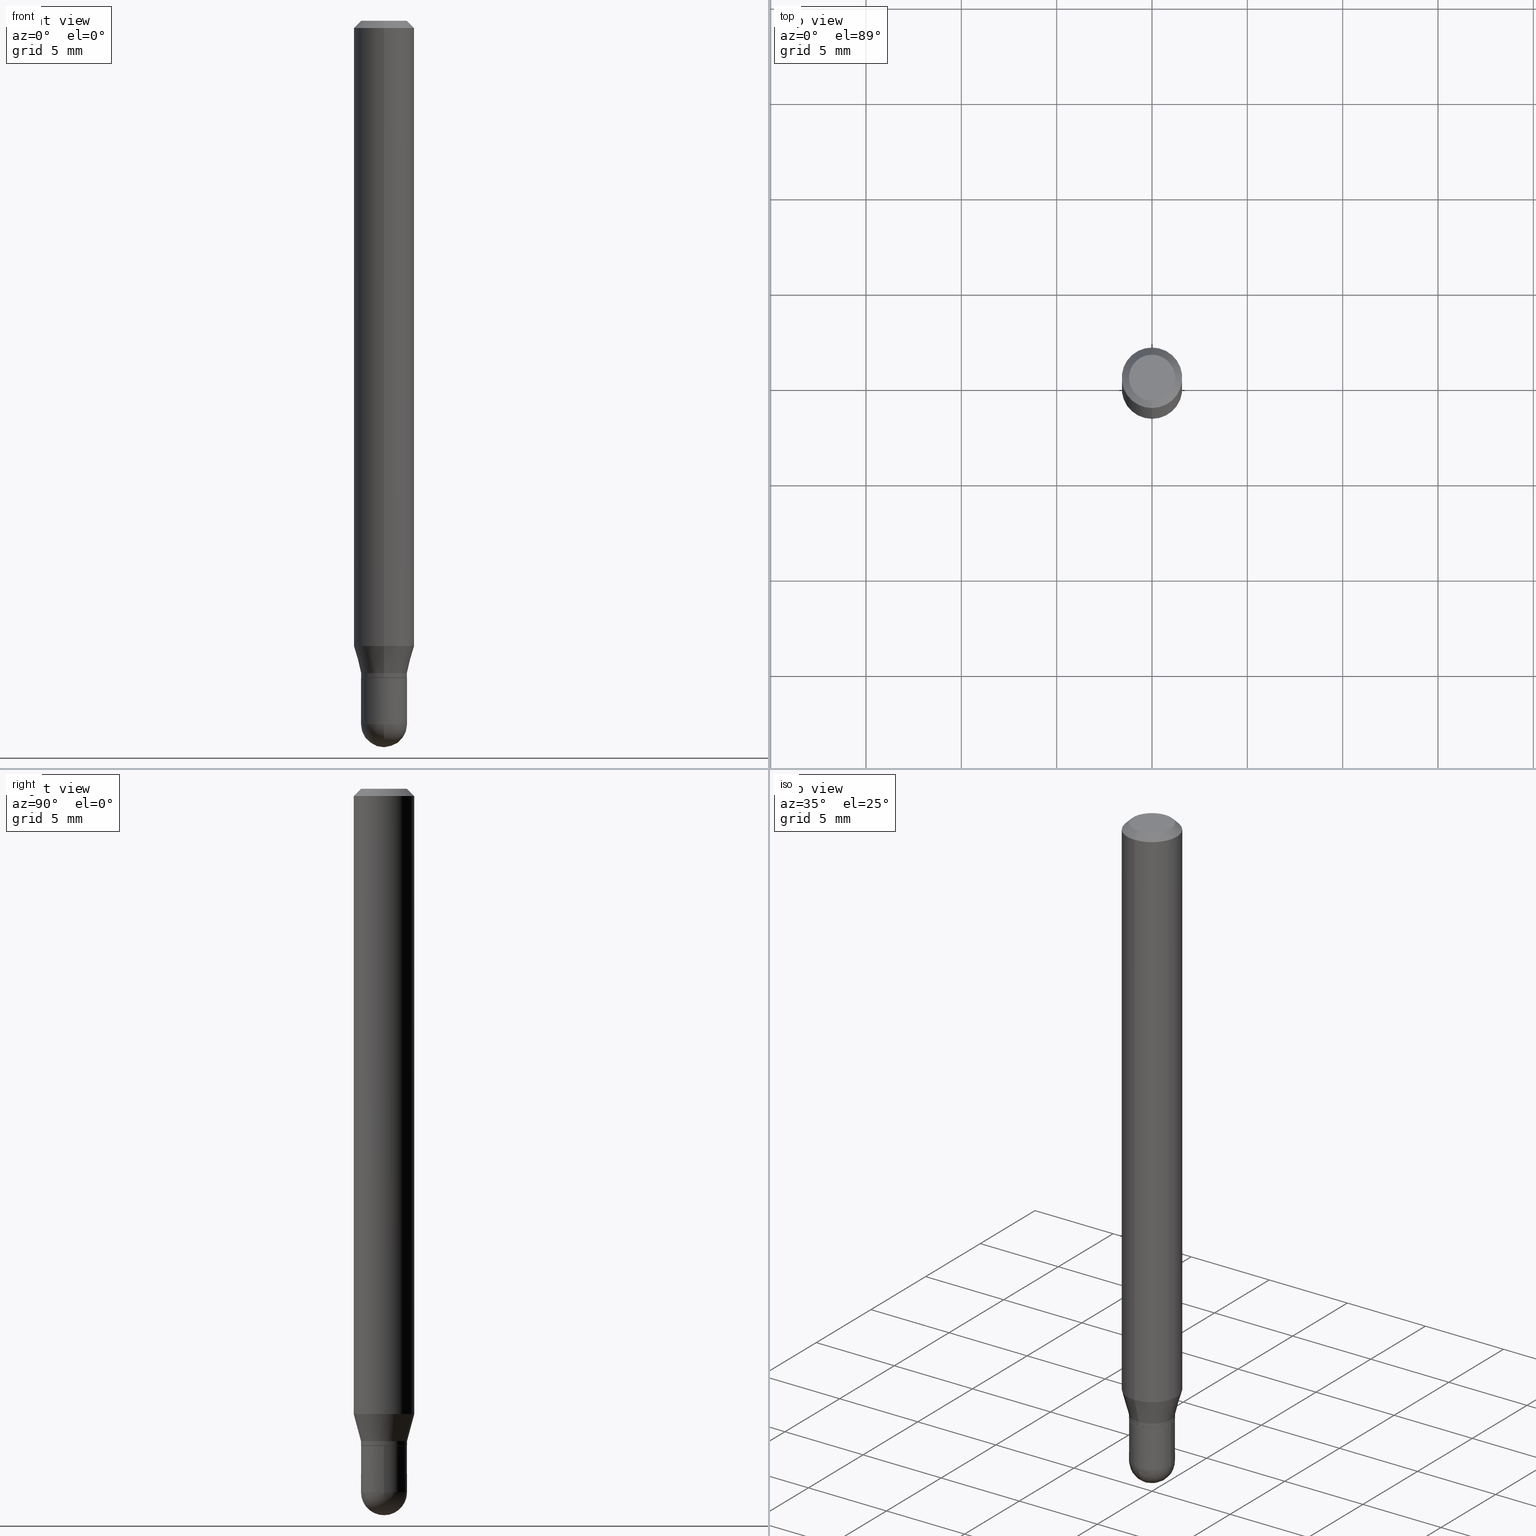
[diagram: canonical four-view strip — front | top / right | iso, engineering-drawing reading convention]
A machine part, canonical four-view strip (front | top / right | iso — engineering-drawing reading convention). The complete STEP part file that produces these views, byte-faithful:
ISO-10303-21;
HEADER;
FILE_DESCRIPTION (( 'STEP AP203' ),
    '1' );
FILE_NAME ('00804.STEP',
    '2024-03-07T18:26:48',
    ( '' ),
    ( '' ),
    'SwSTEP 2.0',
    'SolidWorks 2023',
    '' );
FILE_SCHEMA (( 'CONFIG_CONTROL_DESIGN' ));
ENDSEC;

DATA;
#1 = CARTESIAN_POINT ( 'NONE',  ( 3.547981401110308940E-29, -5.077193716965619798E-15, -1.452500000000000124 ) ) ;
#2 = DIRECTION ( 'NONE',  ( -2.445468806185136877E-29, 3.491481338843145188E-15, 1.000000000000000000 ) ) ;
#3 = DATE_AND_TIME ( #399, #29 ) ;
#4 = EDGE_LOOP ( 'NONE', ( #440, #170, #231, #371 ) ) ;
#5 = CIRCLE ( 'NONE', #391, 0.06250000000000000000 ) ;
#6 = AXIS2_PLACEMENT_3D ( 'NONE', #306, #341, #104 ) ;
#7 = DIRECTION ( 'NONE',  ( -2.445468806185136597E-29, 3.491481338843145583E-15, 1.000000000000000000 ) ) ;
#8 = EDGE_CURVE ( 'NONE', #116, #125, #183, .T. ) ;
#9 = APPROVAL_DATE_TIME ( #3, #226 ) ;
#10 = DIRECTION ( 'NONE',  ( 1.000000000000000000, -6.982962677686265922E-15, 4.883557194083112340E-29 ) ) ;
#11 = ORIENTED_EDGE ( 'NONE', *, *, #23, .F. ) ;
#12 = CARTESIAN_POINT ( 'NONE',  ( 3.357314426466801272E-16, 0.04699999999999526085, -1.357000000000000206 ) ) ;
#13 = DIRECTION ( 'NONE',  ( -6.982962677686265922E-15, -1.000000000000000000, 5.751258934030037627E-15 ) ) ;
#14 = ORIENTED_EDGE ( 'NONE', *, *, #232, .F. ) ;
#15 = EDGE_CURVE ( 'NONE', #449, #390, #491, .T. ) ;
#16 = AXIS2_PLACEMENT_3D ( 'NONE', #174, #213, #426 ) ;
#17 = ORIENTED_EDGE ( 'NONE', *, *, #337, .T. ) ;
#18 = FACE_OUTER_BOUND ( 'NONE', #433, .T. ) ;
#19 = ORIENTED_EDGE ( 'NONE', *, *, #8, .T. ) ;
#20 = CARTESIAN_POINT ( 'NONE',  ( 3.318513853280386005E-29, -4.737922013621053699E-15, -1.356999999999999984 ) ) ;
#21 = VECTOR ( 'NONE', #48, 39.37007874015748143 ) ;
#22 = SECURITY_CLASSIFICATION ( '', '', #460 ) ;
#23 = EDGE_CURVE ( 'NONE', #240, #490, #409, .T. ) ;
#24 = DATE_TIME_ROLE ( 'creation_date' ) ;
#25 = CARTESIAN_POINT ( 'NONE',  ( 3.552043440983912297E-29, -5.071376644669670605E-15, -1.452500000000000346 ) ) ;
#26 = DATE_AND_TIME ( #267, #236 ) ;
#27 = CARTESIAN_POINT ( 'NONE',  ( 3.318513853280386005E-29, -4.737922013621053699E-15, -1.356999999999999984 ) ) ;
#28 = AXIS2_PLACEMENT_3D ( 'NONE', #71, #221, #254 ) ;
#29 = LOCAL_TIME ( 13, 26, 48.00000000000000000, #436 ) ;
#30 = PERSON_AND_ORGANIZATION_ROLE ( 'classification_officer' ) ;
#31 = CARTESIAN_POINT ( 'NONE',  ( -4.364351673553598192E-16, -0.06250000000000446865, -1.291019237886466664 ) ) ;
#32 = APPLICATION_PROTOCOL_DEFINITION ( 'international standard', 'config_control_design', 1994, #378 ) ;
#33 = AXIS2_PLACEMENT_3D ( 'NONE', #482, #10, #477 ) ;
#34 = AXIS2_PLACEMENT_3D ( 'NONE', #389, #427, #212 ) ;
#35 = VERTEX_POINT ( 'NONE', #119 ) ;
#36 = DIRECTION ( 'NONE',  ( -2.445478152748994695E-29, 3.491467954031727558E-15, 1.000000000000000000 ) ) ;
#37 = ORIENTED_EDGE ( 'NONE', *, *, #277, .F. ) ;
#38 = LINE ( 'NONE', #357, #21 ) ;
#39 = DIRECTION ( 'NONE',  ( -2.445478152748994695E-29, 3.491467954031727558E-15, 1.000000000000000000 ) ) ;
#40 = ORIENTED_EDGE ( 'NONE', *, *, #141, .F. ) ;
#41 = EDGE_CURVE ( 'NONE', #129, #406, #214, .T. ) ;
#42 = SPHERICAL_SURFACE ( 'NONE', #120, 0.04749999999999998668 ) ;
#43 = DIRECTION ( 'NONE',  ( -6.982962677686265922E-15, -1.000000000000000000, 3.483106191921935554E-15 ) ) ;
#44 = CLOSED_SHELL ( 'NONE', ( #330, #80, #206, #99, #153 ) ) ;
#45 = CIRCLE ( 'NONE', #291, 0.04749999999999999362 ) ;
#46 = DIRECTION ( 'NONE',  ( 6.982962677686265922E-15, 1.000000000000000000, -5.751258934030028949E-15 ) ) ;
#47 = LINE ( 'NONE', #198, #323 ) ;
#48 = DIRECTION ( 'NONE',  ( -4.937700262164674260E-15, -0.7071067811865632269, 0.7071067811865319186 ) ) ;
#49 = APPROVAL_ROLE ( '' ) ;
#50 = ADVANCED_FACE ( 'NONE', ( #188 ), #444, .T. ) ;
#51 = ORIENTED_EDGE ( 'NONE', *, *, #346, .F. ) ;
#52 = CARTESIAN_POINT ( 'NONE',  ( -3.281992458512213224E-16, -0.04700000000000473244, -1.356999999999999762 ) ) ;
#53 = ORIENTED_EDGE ( 'NONE', *, *, #252, .T. ) ;
#54 = CONICAL_SURFACE ( 'NONE', #268, 0.04749999999999991729, 0.2617993877991508511 ) ;
#55 = AXIS2_PLACEMENT_3D ( 'NONE', #143, #295, #462 ) ;
#56 = EDGE_LOOP ( 'NONE', ( #159, #353, #244, #82 ) ) ;
#57 = LENGTH_MEASURE_WITH_UNIT ( LENGTH_MEASURE( 0.02539999999999999897 ), #285 );
#58 = EDGE_CURVE ( 'NONE', #35, #275, #108, .T. ) ;
#59 = APPLICATION_CONTEXT ( 'configuration controlled 3d designs of mechanical parts and assemblies' ) ;
#60 = CC_DESIGN_APPROVAL ( #305, ( #109 ) ) ;
#61 = DIMENSIONAL_EXPONENTS ( 1.000000000000000000, 0.000000000000000000, 0.000000000000000000, 0.000000000000000000, 0.000000000000000000, 0.000000000000000000, 0.000000000000000000 ) ;
#62 = CARTESIAN_POINT ( 'NONE',  ( 3.294059071752896027E-29, -4.703007334080737587E-15, -1.347000000000000197 ) ) ;
#63 = ADVANCED_FACE ( 'NONE', ( #126 ), #54, .T. ) ;
#64 = DIRECTION ( 'NONE',  ( 6.982962677686265922E-15, 1.000000000000000000, -3.483106191921935554E-15 ) ) ;
#65 = CARTESIAN_POINT ( 'NONE',  ( 0.000000000000000000, 0.000000000000000000, 0.000000000000000000 ) ) ;
#66 = CIRCLE ( 'NONE', #55, 0.04750000000000000749 ) ;
#67 = CARTESIAN_POINT ( 'NONE',  ( 4.440892098500625669E-16, 0.06250000000000000000, -2.182167471269829724E-16 ) ) ;
#68 = DIRECTION ( 'NONE',  ( -6.982962677686266711E-15, -1.000000000000000000, 3.491467954031727953E-15 ) ) ;
#69 = CARTESIAN_POINT ( 'NONE',  ( 3.316907271901307910E-16, 0.04749999999999526129, -1.357000000000000206 ) ) ;
#70 = DIRECTION ( 'NONE',  ( -6.982962677686265922E-15, -1.000000000000000000, 3.491467954031727558E-15 ) ) ;
#71 = CARTESIAN_POINT ( 'NONE',  ( 3.294059071752896027E-29, -4.703007334080737587E-15, -1.347000000000000197 ) ) ;
#72 = ORIENTED_EDGE ( 'NONE', *, *, #178, .F. ) ;
#73 = APPROVAL_DATE_TIME ( #262, #233 ) ;
#74 = FACE_OUTER_BOUND ( 'NONE', #412, .T. ) ;
#75 = VECTOR ( 'NONE', #398, 39.37007874015748143 ) ;
#76 = CARTESIAN_POINT ( 'NONE',  ( 3.375077994860469513E-16, 0.04749999999999991729, -1.658447278165067829E-16 ) ) ;
#77 = AXIS2_PLACEMENT_3D ( 'NONE', #65, #395, #450 ) ;
#78 = ORIENTED_EDGE ( 'NONE', *, *, #276, .F. ) ;
#79 = EDGE_CURVE ( 'NONE', #281, #390, #401, .T. ) ;
#80 = ADVANCED_FACE ( 'NONE', ( #319 ), #197, .T. ) ;
#81 = EDGE_CURVE ( 'NONE', #275, #130, #278, .T. ) ;
#82 = ORIENTED_EDGE ( 'NONE', *, *, #111, .F. ) ;
#83 = DESIGN_CONTEXT ( 'detailed design', #378, 'design' ) ;
#84 = ORIENTED_EDGE ( 'NONE', *, *, #336, .T. ) ;
#85 = DIRECTION ( 'NONE',  ( -2.445478152748994695E-29, 3.491467954031727558E-15, 1.000000000000000000 ) ) ;
#86 = LINE ( 'NONE', #403, #493 ) ;
#87 = CONICAL_SURFACE ( 'NONE', #358, 0.04699999999999999317, 0.7853981633974739252 ) ;
#88 = EDGE_LOOP ( 'NONE', ( #483, #53, #473, #284 ) ) ;
#89 = AXIS2_PLACEMENT_3D ( 'NONE', #106, #465, #428 ) ;
#90 = CC_DESIGN_APPROVAL ( #226, ( #22 ) ) ;
#91 = CARTESIAN_POINT ( 'NONE',  ( 3.547981401110308940E-29, -5.077193716965619798E-15, -1.452500000000000124 ) ) ;
#92 = VERTEX_POINT ( 'NONE', #405 ) ;
#93 = EDGE_LOOP ( 'NONE', ( #443, #19, #370, #155 ) ) ;
#94 = ORIENTED_EDGE ( 'NONE', *, *, #356, .T. ) ;
#95 = PERSON_AND_ORGANIZATION_ROLE ( 'creator' ) ;
#96 = AXIS2_PLACEMENT_3D ( 'NONE', #230, #39, #13 ) ;
#97 = AXIS2_PLACEMENT_3D ( 'NONE', #260, #338, #64 ) ;
#98 = EDGE_CURVE ( 'NONE', #92, #35, #441, .T. ) ;
#99 = ADVANCED_FACE ( 'NONE', ( #74 ), #42, .T. ) ;
#100 = MANIFOLD_SOLID_BREP ( 'Body-Move/Copy2[1]', #44 ) ;
#101 = CIRCLE ( 'NONE', #175, 0.04749999999999998668 ) ;
#102 = AXIS2_PLACEMENT_3D ( 'NONE', #25, #416, #345 ) ;
#103 = DIRECTION ( 'NONE',  ( 2.445478152748994135E-29, -3.491467954031727558E-15, -1.000000000000000000 ) ) ;
#104 = DIRECTION ( 'NONE',  ( 1.000000000000000000, -6.982962677686260400E-15, 0.000000000000000000 ) ) ;
#105 = DIRECTION ( 'NONE',  ( -2.445478152748994695E-29, 3.491467954031727558E-15, 1.000000000000000000 ) ) ;
#106 = CARTESIAN_POINT ( 'NONE',  ( 0.000000000000000000, 0.000000000000000000, 0.000000000000000000 ) ) ;
#107 = FACE_OUTER_BOUND ( 'NONE', #88, .T. ) ;
#108 = CIRCLE ( 'NONE', #286, 0.04749999999999991729 ) ;
#109 = PRODUCT_DEFINITION_FORMATION_WITH_SPECIFIED_SOURCE ( 'ANY', '', #239, .NOT_KNOWN. ) ;
#110 = CARTESIAN_POINT ( 'NONE',  ( 3.318513853280386005E-29, -4.737922013621053699E-15, -1.356999999999999984 ) ) ;
#111 = EDGE_CURVE ( 'NONE', #125, #92, #38, .T. ) ;
#112 = DIRECTION ( 'NONE',  ( -2.445478152748994695E-29, 3.491467954031727558E-15, 1.000000000000000000 ) ) ;
#113 = VERTEX_POINT ( 'NONE', #154 ) ;
#114 = CARTESIAN_POINT ( 'NONE',  ( 3.375077994860798862E-16, 0.04749999999999521966, -1.347000000000000419 ) ) ;
#115 = DIRECTION ( 'NONE',  ( 2.438088387897960049E-29, -3.491481338843145188E-15, -1.000000000000000000 ) ) ;
#116 = VERTEX_POINT ( 'NONE', #12 ) ;
#117 = ADVANCED_BREP_SHAPE_REPRESENTATION ( '00804', ( #100, #263, #245 ), #476 ) ;
#118 = EDGE_CURVE ( 'NONE', #449, #364, #101, .T. ) ;
#119 = CARTESIAN_POINT ( 'NONE',  ( -3.316907271900641323E-16, -0.04750000000000462186, -1.346999999999999975 ) ) ;
#120 = AXIS2_PLACEMENT_3D ( 'NONE', #227, #190, #46 ) ;
#121 = EDGE_CURVE ( 'NONE', #437, #490, #234, .T. ) ;
#122 = VECTOR ( 'NONE', #385, 39.37007874015748143 ) ;
#123 = ORIENTED_EDGE ( 'NONE', *, *, #313, .T. ) ;
#124 = CARTESIAN_POINT ( 'NONE',  ( 3.668217229123494478E-31, -5.237201931047594296E-17, -0.01500000000000000812 ) ) ;
#125 = VERTEX_POINT ( 'NONE', #52 ) ;
#126 = FACE_OUTER_BOUND ( 'NONE', #208, .T. ) ;
#127 = ORIENTED_EDGE ( 'NONE', *, *, #215, .F. ) ;
#128 = DIRECTION ( 'NONE',  ( -6.982962677686266711E-15, -1.000000000000000000, 5.812442539711199378E-15 ) ) ;
#129 = VERTEX_POINT ( 'NONE', #410 ) ;
#130 = VERTEX_POINT ( 'NONE', #209 ) ;
#131 = ORIENTED_EDGE ( 'NONE', *, *, #379, .F. ) ;
#132 = CARTESIAN_POINT ( 'NONE',  ( 3.668217229123494478E-31, -5.237201931047594296E-17, -0.01500000000000000812 ) ) ;
#133 = VECTOR ( 'NONE', #182, 39.37007874015748143 ) ;
#134 = CARTESIAN_POINT ( 'NONE',  ( 3.316907271900976096E-16, 0.04749999999999999362, -1.702752055016937715E-16 ) ) ;
#135 = FACE_OUTER_BOUND ( 'NONE', #394, .T. ) ;
#136 = DIRECTION ( 'NONE',  ( 1.000000000000000000, -6.982962677686261977E-15, 0.000000000000000000 ) ) ;
#137 = PERSON_AND_ORGANIZATION ( #417, #435 ) ;
#138 = DIRECTION ( 'NONE',  ( -2.445478152748994695E-29, 3.491467954031727558E-15, 1.000000000000000000 ) ) ;
#139 = CARTESIAN_POINT ( 'NONE',  ( 0.000000000000000000, 0.000000000000000000, 0.000000000000000000 ) ) ;
#140 = CYLINDRICAL_SURFACE ( 'NONE', #89, 0.04750000000000000749 ) ;
#141 = EDGE_CURVE ( 'NONE', #429, #130, #5, .T. ) ;
#142 = CC_DESIGN_PERSON_AND_ORGANIZATION_ASSIGNMENT ( #152, #461, ( #165 ) ) ;
#143 = CARTESIAN_POINT ( 'NONE',  ( 3.552043440983912297E-29, -5.071376644669670605E-15, -1.452500000000000346 ) ) ;
#144 = CIRCLE ( 'NONE', #6, 0.04750000000000000749 ) ;
#145 = AXIS2_PLACEMENT_3D ( 'NONE', #508, #112, #253 ) ;
#146 = PERSON_AND_ORGANIZATION ( #417, #435 ) ;
#147 = ORIENTED_EDGE ( 'NONE', *, *, #292, .T. ) ;
#148 = APPROVAL_ROLE ( '' ) ;
#149 = FACE_OUTER_BOUND ( 'NONE', #486, .T. ) ;
#150 = DIRECTION ( 'NONE',  ( -2.445478152748994695E-29, 3.491467954031727558E-15, 1.000000000000000000 ) ) ;
#151 = COORDINATED_UNIVERSAL_TIME_OFFSET ( 5, 0, .BEHIND. ) ;
#152 = PERSON_AND_ORGANIZATION ( #417, #435 ) ;
#153 = ADVANCED_FACE ( 'NONE', ( #303 ), #140, .T. ) ;
#154 = CARTESIAN_POINT ( 'NONE',  ( -0.04750000000000000749, -4.567150611253862815E-15, -1.452500000000000346 ) ) ;
#155 = ORIENTED_EDGE ( 'NONE', *, *, #241, .F. ) ;
#156 = CC_DESIGN_PERSON_AND_ORGANIZATION_ASSIGNMENT ( #204, #95, ( #109 ) ) ;
#157 = DIRECTION ( 'NONE',  ( -7.105427357601001070E-15, -1.000000000000000000, 0.000000000000000000 ) ) ;
#158 = CIRCLE ( 'NONE', #16, 0.06250000000000000000 ) ;
#159 = ORIENTED_EDGE ( 'NONE', *, *, #488, .T. ) ;
#160 = DIRECTION ( 'NONE',  ( 1.000000000000000000, -6.982962677686261977E-15, 0.000000000000000000 ) ) ;
#161 = CARTESIAN_POINT ( 'NONE',  ( -4.364351673553912750E-16, -0.06250000000000005551, -0.01499999999999979128 ) ) ;
#162 = DIRECTION ( 'NONE',  ( -2.445468806185136597E-29, 3.491481338843145583E-15, 1.000000000000000000 ) ) ;
#163 = EDGE_LOOP ( 'NONE', ( #272, #407 ) ) ;
#164 = ADVANCED_FACE ( 'NONE', ( #186 ), #87, .T. ) ;
#165 = PRODUCT_DEFINITION ( 'UNKNOWN', '', #109, #83 ) ;
#166 = EDGE_LOOP ( 'NONE', ( #400, #273, #237, #351, #131 ) ) ;
#167 = ORIENTED_EDGE ( 'NONE', *, *, #121, .T. ) ;
#168 = PLANE ( 'NONE',  #332 ) ;
#169 = ADVANCED_FACE ( 'NONE', ( #333 ), #288, .T. ) ;
#170 = ORIENTED_EDGE ( 'NONE', *, *, #215, .T. ) ;
#171 = PRODUCT_RELATED_PRODUCT_CATEGORY ( 'detail', '', ( #239 ) ) ;
#172 = DIRECTION ( 'NONE',  ( -2.445478152748994695E-29, 3.491467954031727558E-15, 1.000000000000000000 ) ) ;
#173 = DIRECTION ( 'NONE',  ( -6.982962677686266711E-15, -1.000000000000000000, 5.812442539711199378E-15 ) ) ;
#174 = CARTESIAN_POINT ( 'NONE',  ( 3.157159341030012166E-29, -4.507552297119063437E-15, -1.291019237886467108 ) ) ;
#175 = AXIS2_PLACEMENT_3D ( 'NONE', #1, #392, #157 ) ;
#176 = DIRECTION ( 'NONE',  ( -2.445478152748994135E-29, 3.491467954031727558E-15, 1.000000000000000000 ) ) ;
#177 = CARTESIAN_POINT ( 'NONE',  ( 0.04750000000000000749, -5.236349137930007031E-15, -1.452500000000000346 ) ) ;
#178 = EDGE_CURVE ( 'NONE', #130, #490, #343, .T. ) ;
#179 = CARTESIAN_POINT ( 'NONE',  ( 0.000000000000000000, 0.000000000000000000, 0.000000000000000000 ) ) ;
#180 = PERSON_AND_ORGANIZATION ( #417, #435 ) ;
#181 = LINE ( 'NONE', #217, #255 ) ;
#182 = DIRECTION ( 'NONE',  ( -2.445478152748994695E-29, 3.491467954031727558E-15, 1.000000000000000000 ) ) ;
#183 = CIRCLE ( 'NONE', #194, 0.04699999999999999317 ) ;
#184 = CARTESIAN_POINT ( 'NONE',  ( -0.04749999999999999362, -4.567150611253862815E-15, -1.356999999999999984 ) ) ;
#185 = CIRCLE ( 'NONE', #34, 0.04749999999999999362 ) ;
#186 = FACE_OUTER_BOUND ( 'NONE', #93, .T. ) ;
#187 = ORIENTED_EDGE ( 'NONE', *, *, #141, .T. ) ;
#188 = FACE_OUTER_BOUND ( 'NONE', #56, .T. ) ;
#189 = ORIENTED_EDGE ( 'NONE', *, *, #79, .F. ) ;
#190 = DIRECTION ( 'NONE',  ( -1.000000000000000000, 6.982962677686265922E-15, -4.883557194083112340E-29 ) ) ;
#191 = DIRECTION ( 'NONE',  ( -4.851104656540964275E-15, -0.7071067811865500152, -0.7071067811865450192 ) ) ;
#192 = VERTEX_POINT ( 'NONE', #494 ) ;
#193 = DIRECTION ( 'NONE',  ( -2.445478152748994695E-29, 3.491467954031727558E-15, 1.000000000000000000 ) ) ;
#194 = AXIS2_PLACEMENT_3D ( 'NONE', #402, #36, #474 ) ;
#195 = CIRCLE ( 'NONE', #205, 0.04749999999999991729 ) ;
#196 = EDGE_LOOP ( 'NONE', ( #72, #94, #17, #78 ) ) ;
#197 = SPHERICAL_SURFACE ( 'NONE', #235, 0.04749999999999998668 ) ;
#198 = CARTESIAN_POINT ( 'NONE',  ( -3.316907271900641323E-16, -0.04750000000000462186, -1.346999999999999975 ) ) ;
#199 = ADVANCED_FACE ( 'NONE', ( #350 ), #243, .T. ) ;
#200 = DIRECTION ( 'NONE',  ( -1.000000000000000000, 6.982962677686265922E-15, -4.883557194083112340E-29 ) ) ;
#201 = ORIENTED_EDGE ( 'NONE', *, *, #178, .T. ) ;
#202 = CIRCLE ( 'NONE', #96, 0.04749999999999991729 ) ;
#203 = EDGE_LOOP ( 'NONE', ( #84, #123, #512, #14, #362 ) ) ;
#204 = PERSON_AND_ORGANIZATION ( #417, #435 ) ;
#205 = AXIS2_PLACEMENT_3D ( 'NONE', #62, #105, #503 ) ;
#206 = ADVANCED_FACE ( 'NONE', ( #421 ), #502, .F. ) ;
#207 = EDGE_CURVE ( 'NONE', #92, #192, #422, .T. ) ;
#208 = EDGE_LOOP ( 'NONE', ( #310, #321, #40, #37 ) ) ;
#209 = CARTESIAN_POINT ( 'NONE',  ( 4.440892098500942692E-16, 0.06249999999999551747, -1.291019237886467330 ) ) ;
#210 = DIRECTION ( 'NONE',  ( -6.982962677686265922E-15, -1.000000000000000000, 3.491467954031727558E-15 ) ) ;
#211 = VECTOR ( 'NONE', #471, 39.37007874015748143 ) ;
#212 = DIRECTION ( 'NONE',  ( -6.982962677686266711E-15, -1.000000000000000000, 3.491467954031727953E-15 ) ) ;
#213 = DIRECTION ( 'NONE',  ( -2.445478152748994695E-29, 3.491467954031727558E-15, 1.000000000000000000 ) ) ;
#214 = CIRCLE ( 'NONE', #383, 0.04749999999999999362 ) ;
#215 = EDGE_CURVE ( 'NONE', #192, #275, #431, .T. ) ;
#216 = ADVANCED_FACE ( 'NONE', ( #225 ), #393, .T. ) ;
#217 = CARTESIAN_POINT ( 'NONE',  ( -4.364351673553916201E-16, -0.06250000000000000000, 2.182167471269829724E-16 ) ) ;
#218 = CARTESIAN_POINT ( 'NONE',  ( 0.000000000000000000, 0.000000000000000000, 0.000000000000000000 ) ) ;
#219 = FACE_OUTER_BOUND ( 'NONE', #4, .T. ) ;
#220 = DIRECTION ( 'NONE',  ( -2.445478152748994695E-29, 3.491467954031727558E-15, 1.000000000000000000 ) ) ;
#221 = DIRECTION ( 'NONE',  ( -2.445478152748994695E-29, 3.491467954031727558E-15, 1.000000000000000000 ) ) ;
#222 = EDGE_LOOP ( 'NONE', ( #448, #228, #452, #404 ) ) ;
#223 = CONICAL_SURFACE ( 'NONE', #97, 0.06250000000000000000, 0.7853981633974483900 ) ;
#224 = CARTESIAN_POINT ( 'NONE',  ( 3.294059071752896027E-29, -4.703007334080737587E-15, -1.347000000000000197 ) ) ;
#225 = FACE_OUTER_BOUND ( 'NONE', #309, .T. ) ;
#226 = APPROVAL ( #475, 'UNSPECIFIED' ) ;
#227 = CARTESIAN_POINT ( 'NONE',  ( 3.547981401110308940E-29, -5.077193716965619798E-15, -1.452500000000000124 ) ) ;
#228 = ORIENTED_EDGE ( 'NONE', *, *, #355, .T. ) ;
#229 = DIRECTION ( 'NONE',  ( 1.000000000000000000, -6.982962677686260400E-15, 0.000000000000000000 ) ) ;
#230 = CARTESIAN_POINT ( 'NONE',  ( 3.317291114204011590E-29, -4.736176279644038604E-15, -1.356500000000000039 ) ) ;
#231 = ORIENTED_EDGE ( 'NONE', *, *, #58, .F. ) ;
#232 = EDGE_CURVE ( 'NONE', #281, #129, #366, .T. ) ;
#233 = APPROVAL ( #388, 'UNSPECIFIED' ) ;
#234 = LINE ( 'NONE', #314, #75 ) ;
#235 = AXIS2_PLACEMENT_3D ( 'NONE', #91, #200, #479 ) ;
#236 = LOCAL_TIME ( 13, 26, 48.00000000000000000, #308 ) ;
#237 = ORIENTED_EDGE ( 'NONE', *, *, #373, .T. ) ;
#238 = DIRECTION ( 'NONE',  ( 1.839019923739603865E-15, 0.2588190451025254579, 0.9659258262890669799 ) ) ;
#239 = PRODUCT ( '00804', '00804', '', ( #381 ) ) ;
#240 = VERTEX_POINT ( 'NONE', #161 ) ;
#241 = EDGE_CURVE ( 'NONE', #192, #92, #202, .T. ) ;
#242 = ORIENTED_EDGE ( 'NONE', *, *, #241, .T. ) ;
#243 = CONICAL_SURFACE ( 'NONE', #28, 0.04749999999999991729, 0.2617993877991508511 ) ;
#244 = ORIENTED_EDGE ( 'NONE', *, *, #207, .F. ) ;
#245 = AXIS2_PLACEMENT_3D ( 'NONE', #218, #507, #468 ) ;
#246 = DIRECTION ( 'NONE',  ( 2.445478152748994695E-29, -3.491467954031727558E-15, -1.000000000000000000 ) ) ;
#247 =( NAMED_UNIT ( * ) PLANE_ANGLE_UNIT ( ) SI_UNIT ( $, .RADIAN. ) );
#248 = AXIS2_PLACEMENT_3D ( 'NONE', #179, #414, #210 ) ;
#249 = CARTESIAN_POINT ( 'NONE',  ( -3.773273898774340269E-16, -0.04749999999999999362, 1.569837724461335946E-16 ) ) ;
#250 = DIRECTION ( 'NONE',  ( -2.445478152748994695E-29, 3.491467954031727558E-15, 1.000000000000000000 ) ) ;
#251 = PLANE ( 'NONE',  #359 ) ;
#252 = EDGE_CURVE ( 'NONE', #318, #240, #86, .T. ) ;
#253 = DIRECTION ( 'NONE',  ( -6.982962677686265922E-15, -1.000000000000000000, 3.491467954031727953E-15 ) ) ;
#254 = DIRECTION ( 'NONE',  ( -6.982962677686265922E-15, -1.000000000000000000, 5.751258934030037627E-15 ) ) ;
#255 = VECTOR ( 'NONE', #138, 39.37007874015748143 ) ;
#256 = FACE_OUTER_BOUND ( 'NONE', #203, .T. ) ;
#257 = DIRECTION ( 'NONE',  ( -6.982962677686266711E-15, -1.000000000000000000, 5.812442539711199378E-15 ) ) ;
#258 = DATE_TIME_ROLE ( 'classification_date' ) ;
#259 = APPLICATION_PROTOCOL_DEFINITION ( 'international standard', 'config_control_design', 1994, #59 ) ;
#260 = CARTESIAN_POINT ( 'NONE',  ( 3.668217229123494478E-31, -5.237201931047594296E-17, -0.01500000000000000812 ) ) ;
#261 = ORIENTED_EDGE ( 'NONE', *, *, #15, .T. ) ;
#262 = DATE_AND_TIME ( #344, #269 ) ;
#263 = MANIFOLD_SOLID_BREP ( 'Body-Move/Copy2[2]', #311 ) ;
#264 = CARTESIAN_POINT ( 'NONE',  ( 3.294059071752896027E-29, -4.703007334080737587E-15, -1.347000000000000197 ) ) ;
#265 = DIRECTION ( 'NONE',  ( -6.982962677686265922E-15, -1.000000000000000000, 5.751258934030037627E-15 ) ) ;
#266 = ORIENTED_EDGE ( 'NONE', *, *, #337, .F. ) ;
#267 = CALENDAR_DATE ( 2024, 7, 3 ) ;
#268 = AXIS2_PLACEMENT_3D ( 'NONE', #224, #279, #438 ) ;
#269 = LOCAL_TIME ( 13, 26, 48.00000000000000000, #297 ) ;
#270 = DIRECTION ( 'NONE',  ( -2.445478152748994695E-29, 3.491467954031727558E-15, 1.000000000000000000 ) ) ;
#271 = CARTESIAN_POINT ( 'NONE',  ( 0.04750000000000000749, -3.316907271900977082E-16, 2.316183968503069432E-30 ) ) ;
#272 = ORIENTED_EDGE ( 'NONE', *, *, #41, .T. ) ;
#273 = ORIENTED_EDGE ( 'NONE', *, *, #282, .T. ) ;
#274 = CARTESIAN_POINT ( 'NONE',  ( 3.668217229123494478E-31, -5.237201931047594296E-17, -0.01500000000000000812 ) ) ;
#275 = VERTEX_POINT ( 'NONE', #478 ) ;
#276 = EDGE_CURVE ( 'NONE', #490, #240, #453, .T. ) ;
#277 = EDGE_CURVE ( 'NONE', #35, #429, #47, .T. ) ;
#278 = LINE ( 'NONE', #114, #300 ) ;
#279 = DIRECTION ( 'NONE',  ( -2.445478152748994695E-29, 3.491467954031727558E-15, 1.000000000000000000 ) ) ;
#280 = LOCAL_TIME ( 13, 26, 48.00000000000000000, #456 ) ;
#281 = VERTEX_POINT ( 'NONE', #177 ) ;
#282 = EDGE_CURVE ( 'NONE', #113, #364, #144, .T. ) ;
#283 = EDGE_LOOP ( 'NONE', ( #396, #304 ) ) ;
#284 = ORIENTED_EDGE ( 'NONE', *, *, #121, .F. ) ;
#285 =( LENGTH_UNIT ( ) NAMED_UNIT ( * ) SI_UNIT ( $, .METRE. ) );
#286 = AXIS2_PLACEMENT_3D ( 'NONE', #264, #270, #472 ) ;
#287 = APPROVAL_STATUS ( 'not_yet_approved' ) ;
#288 = CYLINDRICAL_SURFACE ( 'NONE', #248, 0.06250000000000000000 ) ;
#289 = CARTESIAN_POINT ( 'NONE',  ( 4.440892098500943678E-16, 0.06249999999999995837, -0.01500000000000022669 ) ) ;
#290 = CC_DESIGN_DATE_AND_TIME_ASSIGNMENT ( #26, #24, ( #165 ) ) ;
#291 = AXIS2_PLACEMENT_3D ( 'NONE', #469, #496, #136 ) ;
#292 = EDGE_CURVE ( 'NONE', #318, #437, #185, .T. ) ;
#293 = CARTESIAN_POINT ( 'NONE',  ( 2.166927277073218112E-46, -3.093774171776428259E-32, -8.860955370373462621E-18 ) ) ;
#294 = EDGE_CURVE ( 'NONE', #116, #192, #342, .T. ) ;
#295 = DIRECTION ( 'NONE',  ( -2.445468806185136597E-29, 3.491481338843145583E-15, 1.000000000000000000 ) ) ;
#296 = CC_DESIGN_PERSON_AND_ORGANIZATION_ASSIGNMENT ( #334, #495, ( #109 ) ) ;
#297 = COORDINATED_UNIVERSAL_TIME_OFFSET ( 5, 0, .BEHIND. ) ;
#298 = DIRECTION ( 'NONE',  ( 1.000000000000000000, -6.982962677686266711E-15, 4.876176775795934672E-29 ) ) ;
#299 = AXIS2_PLACEMENT_3D ( 'NONE', #69, #115, #470 ) ;
#300 = VECTOR ( 'NONE', #238, 39.37007874015748854 ) ;
#301 = LOCAL_TIME ( 13, 26, 48.00000000000000000, #151 ) ;
#302 = LINE ( 'NONE', #498, #122 ) ;
#303 = FACE_OUTER_BOUND ( 'NONE', #166, .T. ) ;
#304 = ORIENTED_EDGE ( 'NONE', *, *, #8, .F. ) ;
#305 = APPROVAL ( #287, 'UNSPECIFIED' ) ;
#306 = CARTESIAN_POINT ( 'NONE',  ( 3.552043440983912297E-29, -5.071376644669670605E-15, -1.452500000000000346 ) ) ;
#307 = ORIENTED_EDGE ( 'NONE', *, *, #276, .T. ) ;
#308 = COORDINATED_UNIVERSAL_TIME_OFFSET ( 5, 0, .BEHIND. ) ;
#309 = EDGE_LOOP ( 'NONE', ( #187, #201, #11, #266 ) ) ;
#310 = ORIENTED_EDGE ( 'NONE', *, *, #58, .T. ) ;
#311 = CLOSED_SHELL ( 'NONE', ( #424, #50, #413, #216, #63, #199, #169, #499, #481, #425, #164, #445 ) ) ;
#312 = CC_DESIGN_APPROVAL ( #233, ( #165 ) ) ;
#313 = EDGE_CURVE ( 'NONE', #113, #406, #302, .T. ) ;
#314 = CARTESIAN_POINT ( 'NONE',  ( 4.364351673553919652E-16, 0.06249999999999995143, -0.01500000000000022669 ) ) ;
#315 = DIRECTION ( 'NONE',  ( -6.982962677686265922E-15, -1.000000000000000000, 3.491467954031727558E-15 ) ) ;
#316 = ORIENTED_EDGE ( 'NONE', *, *, #282, .F. ) ;
#317 = CARTESIAN_POINT ( 'NONE',  ( 3.318501169993230375E-29, -4.737940176810148435E-15, -1.356999999999999984 ) ) ;
#318 = VERTEX_POINT ( 'NONE', #249 ) ;
#319 = FACE_OUTER_BOUND ( 'NONE', #354, .T. ) ;
#320 = SHAPE_DEFINITION_REPRESENTATION ( #487, #117 ) ;
#321 = ORIENTED_EDGE ( 'NONE', *, *, #81, .T. ) ;
#322 = AXIS2_PLACEMENT_3D ( 'NONE', #447, #162, #229 ) ;
#323 = VECTOR ( 'NONE', #451, 39.37007874015748854 ) ;
#324 = ORIENTED_EDGE ( 'NONE', *, *, #336, .F. ) ;
#325 = ORIENTED_EDGE ( 'NONE', *, *, #252, .F. ) ;
#326 = DIRECTION ( 'NONE',  ( 6.982962677686265922E-15, 1.000000000000000000, -3.491467954031727558E-15 ) ) ;
#327 = ORIENTED_EDGE ( 'NONE', *, *, #373, .F. ) ;
#328 = DIRECTION ( 'NONE',  ( 6.982962677686265922E-15, 1.000000000000000000, -3.483106191921935554E-15 ) ) ;
#329 = AXIS2_PLACEMENT_3D ( 'NONE', #124, #361, #365 ) ;
#330 = ADVANCED_FACE ( 'NONE', ( #256 ), #382, .T. ) ;
#331 = CC_DESIGN_PERSON_AND_ORGANIZATION_ASSIGNMENT ( #137, #463, ( #239 ) ) ;
#332 = AXIS2_PLACEMENT_3D ( 'NONE', #134, #103, #326 ) ;
#333 = FACE_OUTER_BOUND ( 'NONE', #196, .T. ) ;
#334 = PERSON_AND_ORGANIZATION ( #417, #435 ) ;
#335 = DATE_AND_TIME ( #408, #280 ) ;
#336 = EDGE_CURVE ( 'NONE', #390, #113, #374, .T. ) ;
#337 = EDGE_CURVE ( 'NONE', #429, #240, #181, .T. ) ;
#338 = DIRECTION ( 'NONE',  ( 2.445478152748994695E-29, -3.491467954031727558E-15, -1.000000000000000000 ) ) ;
#339 = VECTOR ( 'NONE', #85, 39.37007874015748143 ) ;
#340 = APPROVAL_PERSON_ORGANIZATION ( #432, #226, #49 ) ;
#341 = DIRECTION ( 'NONE',  ( -2.445468806185136597E-29, 3.491481338843145583E-15, 1.000000000000000000 ) ) ;
#342 = LINE ( 'NONE', #501, #211 ) ;
#343 = LINE ( 'NONE', #67, #133 ) ;
#344 = CALENDAR_DATE ( 2024, 7, 3 ) ;
#345 = DIRECTION ( 'NONE',  ( 1.000000000000000000, -6.982962677686260400E-15, 0.000000000000000000 ) ) ;
#346 = EDGE_CURVE ( 'NONE', #437, #318, #376, .T. ) ;
#347 = VECTOR ( 'NONE', #172, 39.37007874015748143 ) ;
#348 = CC_DESIGN_SECURITY_CLASSIFICATION ( #22, ( #109 ) ) ;
#349 = CARTESIAN_POINT ( 'NONE',  ( 3.840629472727447874E-16, 0.04749999999999999362, -1.747056831868805136E-16 ) ) ;
#350 = FACE_OUTER_BOUND ( 'NONE', #222, .T. ) ;
#351 = ORIENTED_EDGE ( 'NONE', *, *, #232, .T. ) ;
#352 = CC_DESIGN_DATE_AND_TIME_ASSIGNMENT ( #466, #258, ( #22 ) ) ;
#353 = ORIENTED_EDGE ( 'NONE', *, *, #294, .T. ) ;
#354 = EDGE_LOOP ( 'NONE', ( #480, #489, #316, #324 ) ) ;
#355 = EDGE_CURVE ( 'NONE', #275, #35, #195, .T. ) ;
#356 = EDGE_CURVE ( 'NONE', #130, #429, #158, .T. ) ;
#357 = CARTESIAN_POINT ( 'NONE',  ( -3.281992458512213224E-16, -0.04700000000000473244, -1.356999999999999762 ) ) ;
#358 = AXIS2_PLACEMENT_3D ( 'NONE', #110, #386, #257 ) ;
#359 = AXIS2_PLACEMENT_3D ( 'NONE', #27, #176, #70 ) ;
#360 = CC_DESIGN_PERSON_AND_ORGANIZATION_ASSIGNMENT ( #146, #30, ( #22 ) ) ;
#361 = DIRECTION ( 'NONE',  ( -2.445478152748994695E-29, 3.491467954031727558E-15, 1.000000000000000000 ) ) ;
#362 = ORIENTED_EDGE ( 'NONE', *, *, #79, .T. ) ;
#363 = ORIENTED_EDGE ( 'NONE', *, *, #118, .F. ) ;
#364 = VERTEX_POINT ( 'NONE', #418 ) ;
#365 = DIRECTION ( 'NONE',  ( -6.982962677686265922E-15, -1.000000000000000000, 3.483106191921935554E-15 ) ) ;
#366 = LINE ( 'NONE', #271, #368 ) ;
#367 = ORIENTED_EDGE ( 'NONE', *, *, #355, .F. ) ;
#368 = VECTOR ( 'NONE', #2, 39.37007874015748143 ) ;
#369 = AXIS2_PLACEMENT_3D ( 'NONE', #274, #439, #43 ) ;
#370 = ORIENTED_EDGE ( 'NONE', *, *, #111, .T. ) ;
#371 = ORIENTED_EDGE ( 'NONE', *, *, #98, .F. ) ;
#372 =( CONVERSION_BASED_UNIT ( 'INCH', #57 ) LENGTH_UNIT ( ) NAMED_UNIT ( #61 ) );
#373 = EDGE_CURVE ( 'NONE', #364, #281, #66, .T. ) ;
#374 = CIRCLE ( 'NONE', #102, 0.04750000000000000749 ) ;
#375 = APPROVAL_DATE_TIME ( #335, #305 ) ;
#376 = CIRCLE ( 'NONE', #505, 0.04749999999999999362 ) ;
#377 =( NAMED_UNIT ( * ) SI_UNIT ( $, .STERADIAN. ) SOLID_ANGLE_UNIT ( ) );
#378 = APPLICATION_CONTEXT ( 'configuration controlled 3d designs of mechanical parts and assemblies' ) ;
#379 = EDGE_CURVE ( 'NONE', #406, #129, #45, .T. ) ;
#380 = DIRECTION ( 'NONE',  ( -2.445468806185136597E-29, 3.491481338843145583E-15, 1.000000000000000000 ) ) ;
#381 = MECHANICAL_CONTEXT ( 'NONE', #59, 'mechanical' ) ;
#382 = CYLINDRICAL_SURFACE ( 'NONE', #411, 0.04750000000000000749 ) ;
#383 = AXIS2_PLACEMENT_3D ( 'NONE', #317, #7, #160 ) ;
#384 = AXIS2_PLACEMENT_3D ( 'NONE', #20, #250, #173 ) ;
#385 = DIRECTION ( 'NONE',  ( -2.445468806185136877E-29, 3.491481338843145188E-15, 1.000000000000000000 ) ) ;
#386 = DIRECTION ( 'NONE',  ( -2.445478152748994695E-29, 3.491467954031727558E-15, 1.000000000000000000 ) ) ;
#387 = CYLINDRICAL_SURFACE ( 'NONE', #145, 0.04749999999999991729 ) ;
#388 = APPROVAL_STATUS ( 'not_yet_approved' ) ;
#389 = CARTESIAN_POINT ( 'NONE',  ( 2.166927277073218112E-46, -3.093774171776428259E-32, -8.860955370373462621E-18 ) ) ;
#390 = VERTEX_POINT ( 'NONE', #464 ) ;
#391 = AXIS2_PLACEMENT_3D ( 'NONE', #492, #455, #446 ) ;
#392 = DIRECTION ( 'NONE',  ( -1.000000000000000000, 7.105427357601001070E-15, -4.926315508542082329E-29 ) ) ;
#393 = CYLINDRICAL_SURFACE ( 'NONE', #434, 0.06250000000000000000 ) ;
#394 = EDGE_LOOP ( 'NONE', ( #325, #51, #167, #307 ) ) ;
#395 = DIRECTION ( 'NONE',  ( -2.445478152748994695E-29, 3.491467954031727558E-15, 1.000000000000000000 ) ) ;
#396 = ORIENTED_EDGE ( 'NONE', *, *, #488, .F. ) ;
#397 = ORIENTED_EDGE ( 'NONE', *, *, #98, .T. ) ;
#398 = DIRECTION ( 'NONE',  ( 4.937700262164548042E-15, 0.7071067811865451302, -0.7071067811865499042 ) ) ;
#399 = CALENDAR_DATE ( 2024, 7, 3 ) ;
#400 = ORIENTED_EDGE ( 'NONE', *, *, #313, .F. ) ;
#401 = CIRCLE ( 'NONE', #322, 0.04750000000000000749 ) ;
#402 = CARTESIAN_POINT ( 'NONE',  ( 3.318513853280386005E-29, -4.737922013621053699E-15, -1.356999999999999984 ) ) ;
#403 = CARTESIAN_POINT ( 'NONE',  ( -4.287811248607203282E-16, -0.06250000000000005551, -0.01499999999999979128 ) ) ;
#404 = ORIENTED_EDGE ( 'NONE', *, *, #356, .F. ) ;
#405 = CARTESIAN_POINT ( 'NONE',  ( -3.316907271900631462E-16, -0.04750000000000454553, -1.356499999999999817 ) ) ;
#406 = VERTEX_POINT ( 'NONE', #184 ) ;
#407 = ORIENTED_EDGE ( 'NONE', *, *, #379, .T. ) ;
#408 = CALENDAR_DATE ( 2024, 7, 3 ) ;
#409 = CIRCLE ( 'NONE', #329, 0.06250000000000000000 ) ;
#410 = CARTESIAN_POINT ( 'NONE',  ( 0.04749999999999999362, -5.069630904000245946E-15, -1.356999999999999984 ) ) ;
#411 = AXIS2_PLACEMENT_3D ( 'NONE', #139, #380, #298 ) ;
#412 = EDGE_LOOP ( 'NONE', ( #363, #261, #189, #327 ) ) ;
#413 = ADVANCED_FACE ( 'NONE', ( #107 ), #223, .T. ) ;
#414 = DIRECTION ( 'NONE',  ( -2.445478152748994695E-29, 3.491467954031727558E-15, 1.000000000000000000 ) ) ;
#415 = APPROVAL_ROLE ( '' ) ;
#416 = DIRECTION ( 'NONE',  ( -2.445468806185136597E-29, 3.491481338843145583E-15, 1.000000000000000000 ) ) ;
#417 = PERSON ( 'UNSPECIFIED', 'UNSPECIFIED', 'UNSPECIFIED', ('UNSPECIFIED'), ('UNSPECIFIED'), ('UNSPECIFIED') ) ;
#418 = CARTESIAN_POINT ( 'NONE',  ( -3.375077994860119456E-16, -0.04750000000000507983, -1.452500000000000124 ) ) ;
#419 = CARTESIAN_POINT ( 'NONE',  ( 3.666172189340904338E-29, -5.240130544412694746E-15, -1.500000000000000222 ) ) ;
#420 = CYLINDRICAL_SURFACE ( 'NONE', #77, 0.04749999999999991729 ) ;
#421 = FACE_OUTER_BOUND ( 'NONE', #163, .T. ) ;
#422 = CIRCLE ( 'NONE', #504, 0.04749999999999991729 ) ;
#423 = APPROVAL_PERSON_ORGANIZATION ( #454, #305, #415 ) ;
#424 = ADVANCED_FACE ( 'NONE', ( #219 ), #387, .T. ) ;
#425 = ADVANCED_FACE ( 'NONE', ( #459 ), #251, .F. ) ;
#426 = DIRECTION ( 'NONE',  ( -6.982962677686265922E-15, -1.000000000000000000, 4.370956789862821150E-15 ) ) ;
#427 = DIRECTION ( 'NONE',  ( -2.445478152748994695E-29, 3.491467954031727558E-15, 1.000000000000000000 ) ) ;
#428 = DIRECTION ( 'NONE',  ( 1.000000000000000000, -6.982962677686266711E-15, 4.876176775795934672E-29 ) ) ;
#429 = VERTEX_POINT ( 'NONE', #31 ) ;
#430 = CARTESIAN_POINT ( 'NONE',  ( -3.316907271900970672E-16, -0.04749999999999991729, 1.658447278165067829E-16 ) ) ;
#431 = LINE ( 'NONE', #76, #347 ) ;
#432 = PERSON_AND_ORGANIZATION ( #417, #435 ) ;
#433 = EDGE_LOOP ( 'NONE', ( #506, #147 ) ) ;
#434 = AXIS2_PLACEMENT_3D ( 'NONE', #442, #511, #315 ) ;
#435 = ORGANIZATION ( 'UNSPECIFIED', 'UNSPECIFIED', '' ) ;
#436 = COORDINATED_UNIVERSAL_TIME_OFFSET ( 5, 0, .BEHIND. ) ;
#437 = VERTEX_POINT ( 'NONE', #349 ) ;
#438 = DIRECTION ( 'NONE',  ( -6.982962677686265922E-15, -1.000000000000000000, 5.751258934030037627E-15 ) ) ;
#439 = DIRECTION ( 'NONE',  ( -2.445478152748994695E-29, 3.491467954031727558E-15, 1.000000000000000000 ) ) ;
#440 = ORIENTED_EDGE ( 'NONE', *, *, #207, .T. ) ;
#441 = LINE ( 'NONE', #430, #339 ) ;
#442 = CARTESIAN_POINT ( 'NONE',  ( 0.000000000000000000, 0.000000000000000000, 0.000000000000000000 ) ) ;
#443 = ORIENTED_EDGE ( 'NONE', *, *, #294, .F. ) ;
#444 = CONICAL_SURFACE ( 'NONE', #484, 0.04699999999999999317, 0.7853981633974739252 ) ;
#445 = ADVANCED_FACE ( 'NONE', ( #149 ), #420, .T. ) ;
#446 = DIRECTION ( 'NONE',  ( -6.982962677686265922E-15, -1.000000000000000000, 4.370956789862821150E-15 ) ) ;
#447 = CARTESIAN_POINT ( 'NONE',  ( 3.552043440983912297E-29, -5.071376644669670605E-15, -1.452500000000000346 ) ) ;
#448 = ORIENTED_EDGE ( 'NONE', *, *, #81, .F. ) ;
#449 = VERTEX_POINT ( 'NONE', #419 ) ;
#450 = DIRECTION ( 'NONE',  ( -6.982962677686265922E-15, -1.000000000000000000, 3.491467954031727953E-15 ) ) ;
#451 = DIRECTION ( 'NONE',  ( -1.807323732225333689E-15, -0.2588190451025186856, 0.9659258262890687563 ) ) ;
#452 = ORIENTED_EDGE ( 'NONE', *, *, #277, .T. ) ;
#453 = CIRCLE ( 'NONE', #369, 0.06250000000000000000 ) ;
#454 = PERSON_AND_ORGANIZATION ( #417, #435 ) ;
#455 = DIRECTION ( 'NONE',  ( -2.445478152748994695E-29, 3.491467954031727558E-15, 1.000000000000000000 ) ) ;
#456 = COORDINATED_UNIVERSAL_TIME_OFFSET ( 5, 0, .BEHIND. ) ;
#457 = CIRCLE ( 'NONE', #384, 0.04699999999999999317 ) ;
#458 = CALENDAR_DATE ( 2024, 7, 3 ) ;
#459 = FACE_OUTER_BOUND ( 'NONE', #283, .T. ) ;
#460 = SECURITY_CLASSIFICATION_LEVEL ( 'unclassified' ) ;
#461 = PERSON_AND_ORGANIZATION_ROLE ( 'creator' ) ;
#462 = DIRECTION ( 'NONE',  ( 1.000000000000000000, -6.982962677686260400E-15, 0.000000000000000000 ) ) ;
#463 = PERSON_AND_ORGANIZATION_ROLE ( 'design_owner' ) ;
#464 = CARTESIAN_POINT ( 'NONE',  ( 3.316907271901330590E-16, 0.04749999999999491435, -1.452500000000000790 ) ) ;
#465 = DIRECTION ( 'NONE',  ( -2.445468806185136597E-29, 3.491481338843145583E-15, 1.000000000000000000 ) ) ;
#466 = DATE_AND_TIME ( #458, #301 ) ;
#467 = AXIS2_PLACEMENT_3D ( 'NONE', #132, #246, #328 ) ;
#468 = DIRECTION ( 'NONE',  ( 1.000000000000000000, 0.000000000000000000, 0.000000000000000000 ) ) ;
#469 = CARTESIAN_POINT ( 'NONE',  ( 3.318501169993230375E-29, -4.737940176810148435E-15, -1.356999999999999984 ) ) ;
#470 = DIRECTION ( 'NONE',  ( -1.000000000000000000, 6.982962677686265922E-15, -4.876176775795935793E-29 ) ) ;
#471 = DIRECTION ( 'NONE',  ( 5.024295867788190974E-15, 0.7071067811865681119, 0.7071067811865270336 ) ) ;
#472 = DIRECTION ( 'NONE',  ( -6.982962677686265922E-15, -1.000000000000000000, 5.751258934030037627E-15 ) ) ;
#473 = ORIENTED_EDGE ( 'NONE', *, *, #23, .T. ) ;
#474 = DIRECTION ( 'NONE',  ( -6.982962677686266711E-15, -1.000000000000000000, 5.812442539711199378E-15 ) ) ;
#475 = APPROVAL_STATUS ( 'not_yet_approved' ) ;
#476 =( GEOMETRIC_REPRESENTATION_CONTEXT ( 3 ) GLOBAL_UNCERTAINTY_ASSIGNED_CONTEXT ( ( #500 ) ) GLOBAL_UNIT_ASSIGNED_CONTEXT ( ( #372, #247, #377 ) ) REPRESENTATION_CONTEXT ( 'NONE', 'WORKASPACE' ) );
#477 = DIRECTION ( 'NONE',  ( 6.982962677686265133E-15, 1.000000000000000000, 0.000000000000000000 ) ) ;
#478 = CARTESIAN_POINT ( 'NONE',  ( 3.907985046680871024E-16, 0.04749999999999521966, -1.347000000000000419 ) ) ;
#479 = DIRECTION ( 'NONE',  ( 6.982962677686265922E-15, 1.000000000000000000, -5.751258934030028949E-15 ) ) ;
#480 = ORIENTED_EDGE ( 'NONE', *, *, #15, .F. ) ;
#481 = ADVANCED_FACE ( 'NONE', ( #18 ), #168, .F. ) ;
#482 = CARTESIAN_POINT ( 'NONE',  ( 3.547981401110308940E-29, -5.077193716965619798E-15, -1.452500000000000124 ) ) ;
#483 = ORIENTED_EDGE ( 'NONE', *, *, #292, .F. ) ;
#484 = AXIS2_PLACEMENT_3D ( 'NONE', #510, #193, #128 ) ;
#485 = CONICAL_SURFACE ( 'NONE', #467, 0.06250000000000000000, 0.7853981633974483900 ) ;
#486 = EDGE_LOOP ( 'NONE', ( #127, #242, #397, #367 ) ) ;
#487 = PRODUCT_DEFINITION_SHAPE ( 'NONE', 'NONE',  #165 ) ;
#488 = EDGE_CURVE ( 'NONE', #125, #116, #457, .T. ) ;
#489 = ORIENTED_EDGE ( 'NONE', *, *, #118, .T. ) ;
#490 = VERTEX_POINT ( 'NONE', #289 ) ;
#491 = CIRCLE ( 'NONE', #33, 0.04749999999999998668 ) ;
#492 = CARTESIAN_POINT ( 'NONE',  ( 3.157159341030012166E-29, -4.507552297119063437E-15, -1.291019237886467108 ) ) ;
#493 = VECTOR ( 'NONE', #191, 39.37007874015748143 ) ;
#494 = CARTESIAN_POINT ( 'NONE',  ( 3.375077994860809216E-16, 0.04749999999999529599, -1.356500000000000483 ) ) ;
#495 = PERSON_AND_ORGANIZATION_ROLE ( 'design_supplier' ) ;
#496 = DIRECTION ( 'NONE',  ( -2.445468806185136597E-29, 3.491481338843145583E-15, 1.000000000000000000 ) ) ;
#497 = APPROVAL_PERSON_ORGANIZATION ( #180, #233, #148 ) ;
#498 = CARTESIAN_POINT ( 'NONE',  ( -0.04750000000000000749, 3.375077994860476415E-16, -2.336494167871080260E-30 ) ) ;
#499 = ADVANCED_FACE ( 'NONE', ( #135 ), #485, .T. ) ;
#500 = UNCERTAINTY_MEASURE_WITH_UNIT (LENGTH_MEASURE( 1.000000000000000082E-05 ), #372, 'distance_accuracy_value', 'NONE');
#501 = CARTESIAN_POINT ( 'NONE',  ( 3.339550858072801710E-16, 0.04699999999999526085, -1.357000000000000206 ) ) ;
#502 = PLANE ( 'NONE',  #299 ) ;
#503 = DIRECTION ( 'NONE',  ( -6.982962677686265922E-15, -1.000000000000000000, 5.751258934030037627E-15 ) ) ;
#504 = AXIS2_PLACEMENT_3D ( 'NONE', #509, #150, #265 ) ;
#505 = AXIS2_PLACEMENT_3D ( 'NONE', #293, #220, #68 ) ;
#506 = ORIENTED_EDGE ( 'NONE', *, *, #346, .T. ) ;
#507 = DIRECTION ( 'NONE',  ( 0.000000000000000000, 0.000000000000000000, 1.000000000000000000 ) ) ;
#508 = CARTESIAN_POINT ( 'NONE',  ( 0.000000000000000000, 0.000000000000000000, 0.000000000000000000 ) ) ;
#509 = CARTESIAN_POINT ( 'NONE',  ( 3.317291114204011590E-29, -4.736176279644038604E-15, -1.356500000000000039 ) ) ;
#510 = CARTESIAN_POINT ( 'NONE',  ( 3.318513853280386005E-29, -4.737922013621053699E-15, -1.356999999999999984 ) ) ;
#511 = DIRECTION ( 'NONE',  ( -2.445478152748994695E-29, 3.491467954031727558E-15, 1.000000000000000000 ) ) ;
#512 = ORIENTED_EDGE ( 'NONE', *, *, #41, .F. ) ;
ENDSEC;
END-ISO-10303-21;
